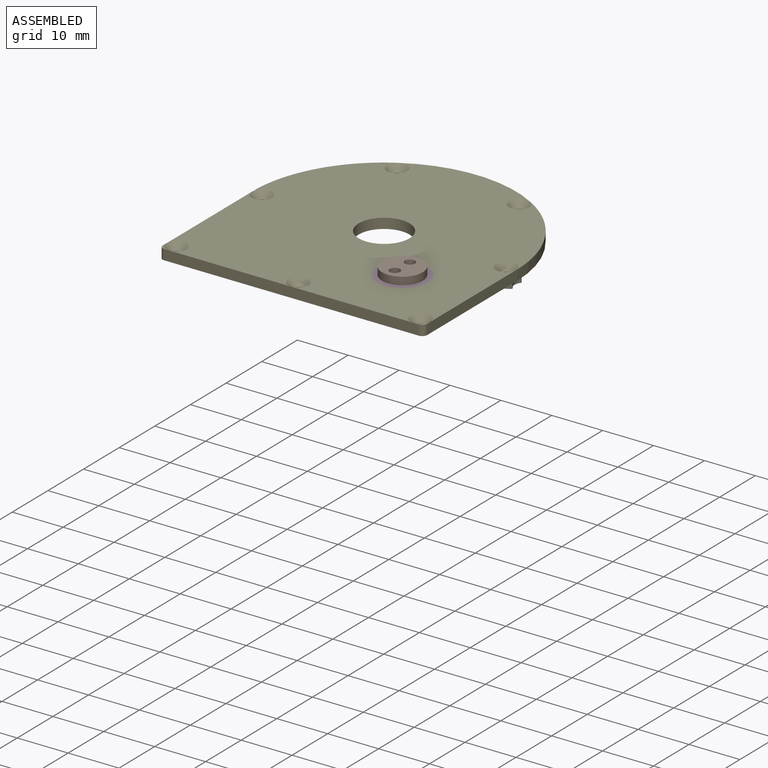
[diagram: assembled view]
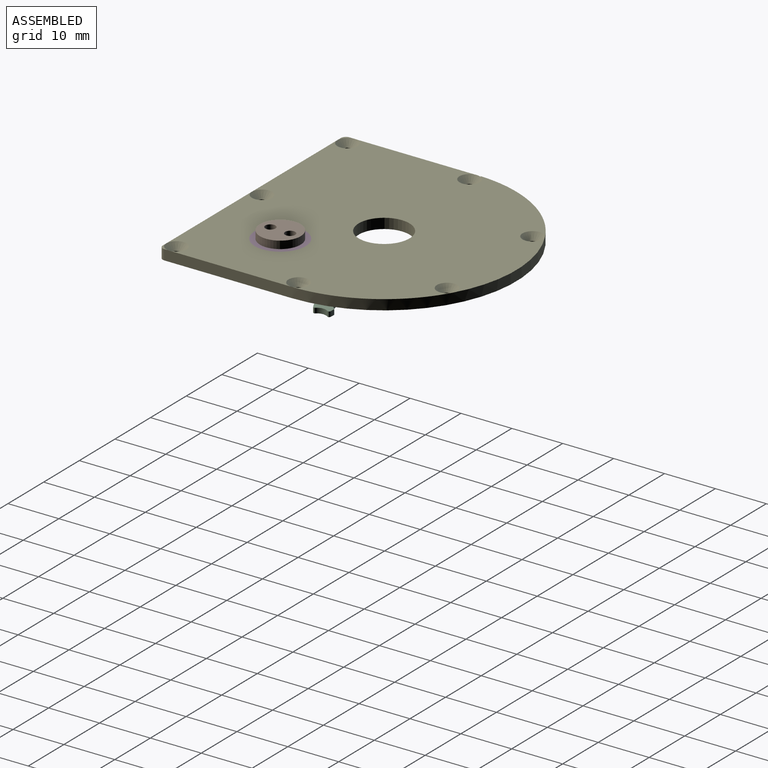
[diagram: assembled view, second angle]
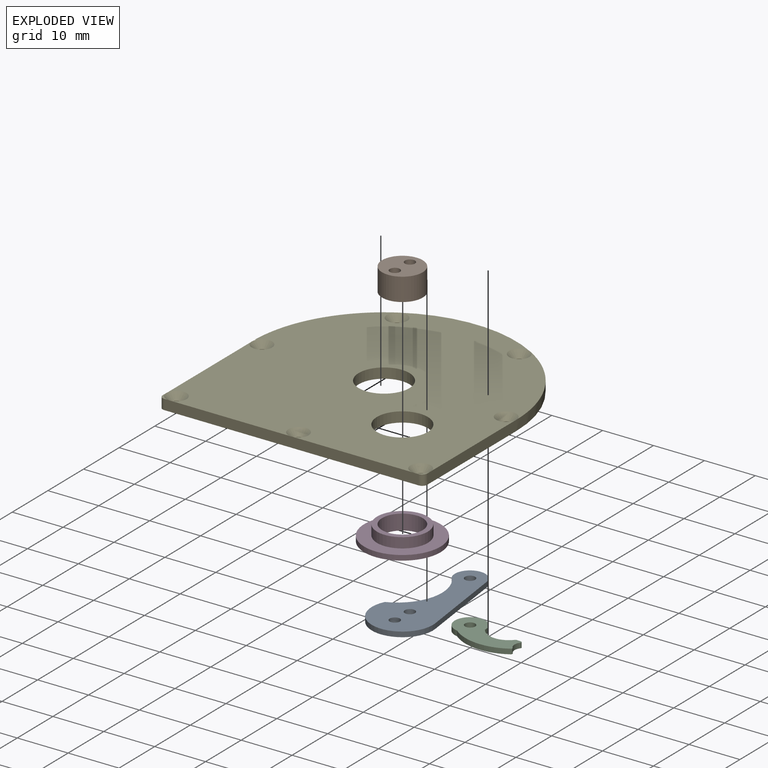
[diagram: exploded view]
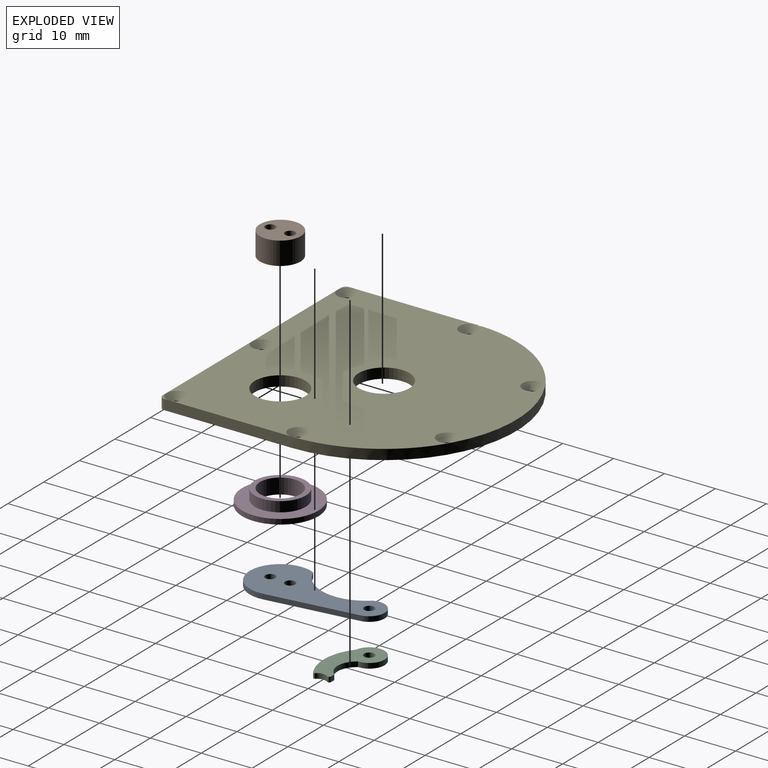
[diagram: exploded view, second angle]
ASSEMBLY  parts=5 mates=4
PART A: 9 faces, bbox 27x12x1 mm
  f0: plane 17.5x2.96mm, normal (0.17,-0.99,0), area 17.7mm2, adj f1,f5,f7,f8
  f1: cylinder r=3mm len=5.96mm, axis (0,0,-1), area 10.4mm2, adj f0,f2,f7,f8
  f2: cylinder r=8.79mm len=14.1mm, axis (0,0,-1), area 16.8mm2, adj f1,f5,f7,f8
  f3: cylinder r=1mm len=2mm, axis (0,0,-1), area 6.3mm2, adj f7,f8
  f4: cylinder r=1mm len=2mm, axis (0,0,-1), area 6.3mm2, adj f7,f8
  f5: cylinder r=6mm len=12mm, axis (0,0,-1), area 22.4mm2, adj f0,f2,f7,f8
  f6: cylinder r=1mm len=2mm, axis (0,0,-1), area 6.3mm2, adj f7,f8
  f7: plane 27x12mm, normal (0,0,1), area 181.5mm2, adj f0,f1,f2,f3,f4,f5,f6
  f8: plane 27x12mm, normal (0,0,-1), area 181.5mm2, adj f0,f1,f2,f3,f4,f5,f6
PART B: 5 faces, bbox 8x8x4.5 mm
  f0: cylinder r=1mm len=4.5mm, axis (0,0,-1), area 28.3mm2, adj f3,f4
  f1: cylinder r=1mm len=4.5mm, axis (0,0,-1), area 28.3mm2, adj f3,f4
  f2: cylinder r=4mm len=8mm, axis (0,0,-1), area 113.1mm2, adj f3,f4
  f3: plane 8x8mm, normal (0,0,1), area 44mm2, adj f0,f1,f2
  f4: plane 8x8mm, normal (0,0,-1), area 44mm2, adj f0,f1,f2
PART C: 11 faces, bbox 13.8x7.9x1 mm
  f0: cylinder r=3mm len=6mm, axis (0,0,-1), area 13.8mm2, adj f3,f4,f5,f7
  f1: plane 1x0.85mm, normal (0,1,0), area 0.8mm2, adj f3,f4,f8,f10
  f2: cylinder r=1mm len=2mm, axis (0,0,-1), area 6.3mm2, adj f3,f4
  f3: plane 13.81x7.87mm, normal (0,0,1), area 56.5mm2, adj f0,f1,f2,f5,f6,f7,f8,f9
  f4: plane 13.81x7.87mm, normal (0,0,-1), area 56.5mm2, adj f0,f1,f2,f5,f6,f7,f8,f9
  f5: cylinder r=3.85mm len=6.19mm, axis (0,0,1), area 7.2mm2, adj f0,f3,f4,f8
  f6: cylinder r=1.8mm len=2.3mm, axis (0,0,1), area 2.5mm2, adj f3,f4,f9,f10
  f7: cylinder r=9.56mm len=11.05mm, axis (0,0,1), area 11.8mm2, adj f0,f3,f4,f9
  f8: cylinder r=0.3mm len=1mm, axis (0,0,1), area 0.3mm2, adj f1,f3,f4,f5
  f9: cylinder r=0.3mm len=1mm, axis (0,0,1), area 0.5mm2, adj f3,f4,f6,f7
  f10: cylinder r=0.3mm len=1mm, axis (0,0,1), area 0.7mm2, adj f1,f3,f4,f6
PART D: 6 faces, bbox 15x15x3 mm
  f0: cylinder r=4mm len=8mm, axis (0,0,-1), area 75.4mm2, adj f3,f5
  f1: cylinder r=7.5mm len=15mm, axis (0,0,-1), area 47.1mm2, adj f2,f3
  f2: plane 15x15mm, normal (0,0,1), area 98.2mm2, adj f1,f4
  f3: plane 15x15mm, normal (0,0,-1), area 126.4mm2, adj f0,f1
  f4: cylinder r=5mm len=10mm, axis (0,0,-1), area 62.8mm2, adj f2,f5
  f5: plane 10x10mm, normal (0,0,1), area 28.3mm2, adj f0,f4
PART E: 26 faces, bbox 52x52x2 mm
  f0: plane 2x2mm, normal (0,0,1), area 0.6mm2, adj f3,f4,f10,f20
  f1: plane 2x2mm, normal (0,0,1), area 0.6mm2, adj f4,f6,f11,f22
  f2: cylinder r=26mm len=52mm, axis (0,0,-1), area 163.4mm2, adj f3,f6,f8,f9
  f3: plane 25x2mm, normal (-1,0,0), area 50mm2, adj f0,f2,f8,f9,f10
  f4: plane 50x2mm, normal (0,-1,0), area 100mm2, adj f0,f1,f8,f9,f10,f11
  f5: cylinder r=5mm len=10mm, axis (0,0,-1), area 62.8mm2, adj f8,f9
  f6: plane 25x2mm, normal (1,0,0), area 50mm2, adj f1,f2,f8,f9,f11
  f7: cylinder r=5mm len=10mm, axis (0,0,-1), area 62.8mm2, adj f8,f9
  f8: plane 52x52mm, normal (0,0,1), area 2167.1mm2, adj f2,f3,f4,f5,f6,f7,f19,f20
  f9: plane 52x52mm, normal (0,0,-1), area 2242.3mm2, adj f2,f3,f4,f5,f6,f7,f10,f11
  f10: cylinder r=1mm len=2mm, axis (0,0,-1), area 3.1mm2, adj f0,f3,f4,f9
  f11: cylinder r=1mm len=2mm, axis (0,0,-1), area 3.1mm2, adj f1,f4,f6,f9
  f12: cylinder r=0.8mm len=1.6mm, axis (0,0,1), area 4mm2, adj f9,f25
  f13: cylinder r=0.8mm len=1.6mm, axis (0,0,1), area 4mm2, adj f9,f23
  f14: cylinder r=0.8mm len=1.6mm, axis (0,0,1), area 4mm2, adj f9,f19
  f15: cylinder r=0.8mm len=1.6mm, axis (0,0,1), area 4mm2, adj f9,f24
  f16: cylinder r=0.8mm len=1.6mm, axis (0,0,1), area 4mm2, adj f9,f20
  f17: cylinder r=0.8mm len=1.6mm, axis (0,0,1), area 4mm2, adj f9,f22
  f18: cylinder r=0.8mm len=1.6mm, axis (0,0,1), area 4mm2, adj f9,f21
  f19: cone r=0.8mm half-angle=45deg, axis (0,0,1), area 14.9mm2, adj f8,f14
  f20: cone r=0.8mm half-angle=45deg, axis (0,0,1), area 14.9mm2, adj f0,f8,f16
  f21: cone r=0.8mm half-angle=45deg, axis (0,0,1), area 14.9mm2, adj f8,f18
  f22: cone r=0.8mm half-angle=45deg, axis (0,0,1), area 14.9mm2, adj f1,f8,f17
  f23: cone r=0.8mm half-angle=45deg, axis (0,0,1), area 14.9mm2, adj f8,f13
  f24: cone r=0.8mm half-angle=45deg, axis (0,0,1), area 14.9mm2, adj f8,f15
  f25: cone r=0.8mm half-angle=45deg, axis (0,0,1), area 14.9mm2, adj f8,f12
PLACE A rot(axis=(0,0,1),87.7deg) t=(-3.08,-14.63,0.86)mm
PLACE B rot(axis=(0,0,1),87.7deg) t=(-3.08,-14.63,1.86)mm
PLACE C rot(axis=(0,0,-1),2.3deg) t=(-2.37,3.35,-0.14)mm
PLACE D t=(-3.08,-14.63,1.86)mm
PLACE E t=(-15.08,-2.63,2.86)mm fixed
MATE fastened D.f4 <-> E.f5  axis (0,0,1) through (-3.08,-14.63,2.86)mm
MATE fastened B.f0 <-> A.f4  axis (0,0,-1) through (-3.16,-16.63,1.86)mm
MATE revolute A.f6 <-> C.f2  axis (0,0,-1) through (-2.37,3.35,0.86)mm
MATE revolute B.f2 <-> D.f1  axis (0,0,-1) through (-3.08,-14.63,1.86)mm
